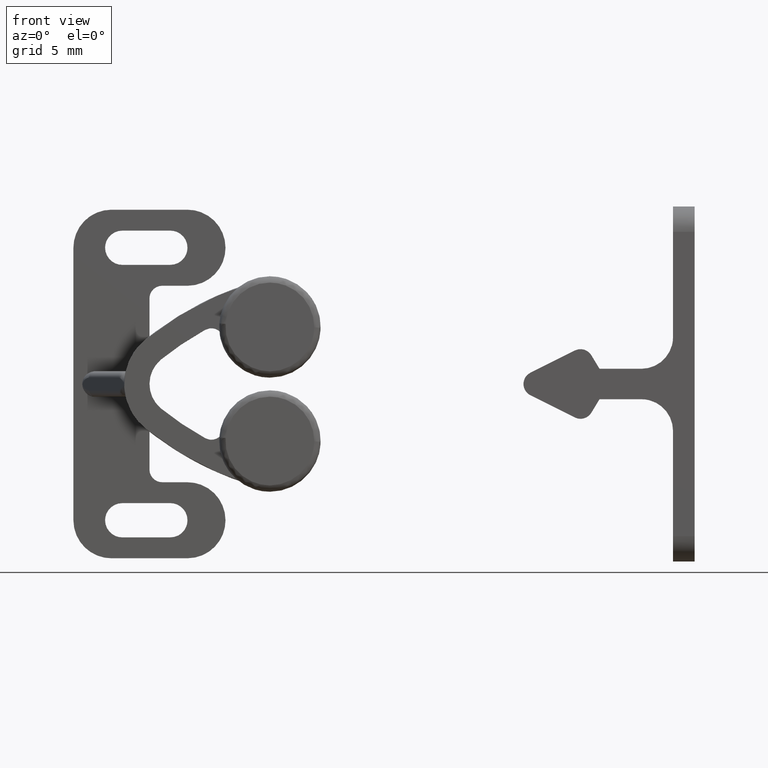
[diagram: clean part render]
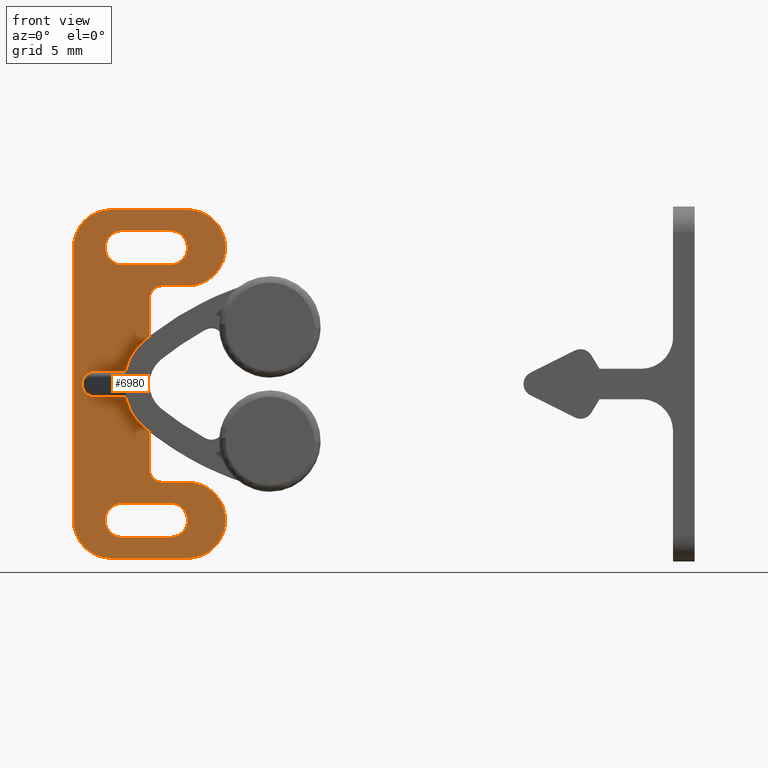
[diagram: same view with one face highlighted and labeled with its STEP entity id]
A machine part, front view. The second image highlights one B-rep face of the part: STEP entity #6980.
In plain terms, the highlighted face is a freeform B-spline surface patch.
Its self-contained STEP definition (entity closure, byte-faithful):
#3278=CARTESIAN_POINT('',(0.843505747733497,-2.299999999999970,-0.516156561359312));
#3279=VERTEX_POINT('',#3278);
#3324=CARTESIAN_POINT('',(0.700000000000102,-2.299999999999970,0.0));
#3325=VERTEX_POINT('',#3324);
#3337=CARTESIAN_POINT('',(0.700000000000102,-2.299999999999970,0.0));
#3338=CARTESIAN_POINT('',(0.700233809387608,-2.299999999999970,-0.179054375784687));
#3339=CARTESIAN_POINT('',(0.751085588481453,-2.299999999999970,-0.362797380615868));
#3340=CARTESIAN_POINT('',(0.843505747733497,-2.299999999999970,-0.516156561359312));
#3341=B_SPLINE_CURVE_WITH_KNOTS('',3,(#3337,#3338,#3339,#3340),.UNSPECIFIED.,.F.,.U.,(4,4),(0.0,0.537163585316673),.UNSPECIFIED.);
#3342=EDGE_CURVE('',#3325,#3279,#3341,.T.);
#3921=CARTESIAN_POINT('',(0.843505747733497,-2.299999999999970,0.516156561359312));
#3922=VERTEX_POINT('',#3921);
#3983=CARTESIAN_POINT('',(0.843505747733497,-2.299999999999970,0.516156561359312));
#3984=CARTESIAN_POINT('',(0.751085587222912,-2.299999999999970,0.362797378529946));
#3985=CARTESIAN_POINT('',(0.700233810786199,-2.299999999999970,0.179054378219047));
#3986=CARTESIAN_POINT('',(0.700000000000102,-2.299999999999970,0.0));
#3987=B_SPLINE_CURVE_WITH_KNOTS('',3,(#3983,#3984,#3985,#3986),.UNSPECIFIED.,.F.,.U.,(4,4),(0.0,0.537163592625224),.UNSPECIFIED.);
#3988=EDGE_CURVE('',#3922,#3325,#3987,.T.);
#4068=CARTESIAN_POINT('',(1.700000000000100,-2.299999999999970,-1.0));
#4069=VERTEX_POINT('',#4068);
#4076=CARTESIAN_POINT('',(0.843505747733497,-2.299999999999970,-0.516156561359312));
#4077=CARTESIAN_POINT('',(0.915255444277593,-2.299999999999973,-0.635546558131602));
#4078=CARTESIAN_POINT('',(1.087329779086633,-2.299999999999964,-0.819383991560892));
#4079=CARTESIAN_POINT('',(1.400049257126239,-2.299999999999977,-0.970352942287705));
#4080=CARTESIAN_POINT('',(1.603582285530137,-2.299999999999962,-1.000034661470277));
#4081=CARTESIAN_POINT('',(1.700000000000100,-2.299999999999970,-1.0));
#4082=B_SPLINE_CURVE_WITH_KNOTS('',3,(#4076,#4077,#4078,#4079,#4080,#4081),.UNSPECIFIED.,.F.,.U.,(4,1,1,4),(0.000000034371817,0.417815579134470,0.739197545418162,1.028449946974713),.UNSPECIFIED.);
#4083=EDGE_CURVE('',#3279,#4069,#4082,.T.);
#4096=CARTESIAN_POINT('',(4.113422412288705,-2.299999999999970,-1.0));
#4097=VERTEX_POINT('',#4096);
#4098=CARTESIAN_POINT('',(1.700000000000100,-2.299999999999970,-1.0));
#4099=CARTESIAN_POINT('',(4.113422412288705,-2.299999999999970,-1.0));
#4100=QUASI_UNIFORM_CURVE('',1,(#4098,#4099),.UNSPECIFIED.,.F.,.U.);
#4101=EDGE_CURVE('',#4069,#4097,#4100,.T.);
#4116=CARTESIAN_POINT('',(1.700000000000100,-2.299999999999970,1.0));
#4117=VERTEX_POINT('',#4116);
#4131=CARTESIAN_POINT('',(4.113365432923684,-2.299999999999970,1.0));
#4132=VERTEX_POINT('',#4131);
#4138=CARTESIAN_POINT('',(4.113365432923684,-2.299999999999970,1.0));
#4139=CARTESIAN_POINT('',(1.700000000000100,-2.299999999999970,1.0));
#4140=QUASI_UNIFORM_CURVE('',1,(#4138,#4139),.UNSPECIFIED.,.F.,.U.);
#4141=EDGE_CURVE('',#4132,#4117,#4140,.T.);
#4164=CARTESIAN_POINT('',(7.650000000000000,-2.299999999999970,9.400000000000000));
#4165=VERTEX_POINT('',#4164);
#4166=CARTESIAN_POINT('',(8.999999999999755,-2.299999999999970,10.750000811932880));
#4167=VERTEX_POINT('',#4166);
#4168=CARTESIAN_POINT('',(7.650000000000000,-2.299999999999970,9.400000000000000));
#4169=CARTESIAN_POINT('',(7.749402557328622,-2.299999999999971,9.399981047211963));
#4170=CARTESIAN_POINT('',(7.937154025100822,-2.299999999999973,9.420832805873065));
#4171=CARTESIAN_POINT('',(8.179526037836640,-2.299999999999965,9.500900153024407));
#4172=CARTESIAN_POINT('',(8.394400225738018,-2.299999999999976,9.615756803062842));
#4173=CARTESIAN_POINT('',(8.586874375025223,-2.299999999999969,9.765967720530572));
#4174=CARTESIAN_POINT('',(8.789904273960744,-2.299999999999970,10.001232468745290));
#4175=CARTESIAN_POINT('',(8.955519876815499,-2.299999999999975,10.330344360193431));
#4176=CARTESIAN_POINT('',(9.000083437213677,-2.299999999999968,10.606409975172429));
#4177=CARTESIAN_POINT('',(8.999999999999755,-2.299999999999970,10.750000811932880));
#4178=B_SPLINE_CURVE_WITH_KNOTS('',3,(#4168,#4169,#4170,#4171,#4172,#4173,#4174,#4175,#4176,#4177),.UNSPECIFIED.,.F.,.U.,(4,1,1,1,1,1,1,4),(0.000000025789444,0.298210378248797,0.563292643850602,0.762105278370097,1.027181729565759,1.292254794693749,1.689876566950777,2.120628712481768),.UNSPECIFIED.);
#4179=EDGE_CURVE('',#4165,#4167,#4178,.T.);
#4181=CARTESIAN_POINT('',(7.650000000000000,-2.299999999999970,12.100000000000000));
#4182=VERTEX_POINT('',#4181);
#4183=CARTESIAN_POINT('',(8.999999999999755,-2.299999999999970,10.750000811932880));
#4184=CARTESIAN_POINT('',(9.000015668192489,-2.299999999999973,10.849402499823290));
#4185=CARTESIAN_POINT('',(8.976732985731045,-2.299999999999964,11.059249840392591));
#4186=CARTESIAN_POINT('',(8.875518521627514,-2.299999999999974,11.342145033072580));
#4187=CARTESIAN_POINT('',(8.732995772587737,-2.299999999999973,11.567160576149110));
#4188=CARTESIAN_POINT('',(8.554514765865399,-2.299999999999965,11.764117573793669));
#4189=CARTESIAN_POINT('',(8.340003513751242,-2.299999999999985,11.923203426538389));
#4190=CARTESIAN_POINT('',(8.025469583679664,-2.299999999999951,12.062623476874240));
#4191=CARTESIAN_POINT('',(7.793593711509823,-2.299999999999990,12.100087794503210));
#4192=CARTESIAN_POINT('',(7.650000000000000,-2.299999999999970,12.100000000000000));
#4193=B_SPLINE_CURVE_WITH_KNOTS('',3,(#4183,#4184,#4185,#4186,#4187,#4188,#4189,#4190,#4191,#4192),.UNSPECIFIED.,.F.,.U.,(4,1,1,1,1,1,1,4),(0.000000026901171,0.298210250636993,0.629563241022495,0.894645337750800,1.093447037096576,1.424795401899806,1.689875837432176,2.120627797221327),.UNSPECIFIED.);
#4194=EDGE_CURVE('',#4167,#4182,#4193,.T.);
#4246=CARTESIAN_POINT('',(3.850000000000110,-2.299999999999970,12.100000000000000));
#4247=VERTEX_POINT('',#4246);
#4248=CARTESIAN_POINT('',(3.850000000000110,-2.299999999999970,12.100000000000000));
#4249=CARTESIAN_POINT('',(7.650000000000000,-2.299999999999970,12.100000000000000));
#4250=QUASI_UNIFORM_CURVE('',1,(#4248,#4249),.UNSPECIFIED.,.F.,.U.);
#4251=EDGE_CURVE('',#4247,#4182,#4250,.T.);
#4287=CARTESIAN_POINT('',(2.500000000000354,-2.299999999999970,10.749999188067120));
#4288=VERTEX_POINT('',#4287);
#4289=CARTESIAN_POINT('',(3.850000000000110,-2.299999999999970,12.100000000000000));
#4290=CARTESIAN_POINT('',(3.706405985926779,-2.299999999999973,12.100090510650221));
#4291=CARTESIAN_POINT('',(3.496614726034196,-2.299999999999969,12.066187649613960));
#4292=CARTESIAN_POINT('',(3.220359852748424,-2.299999999999973,11.951744376897770));
#4293=CARTESIAN_POINT('',(3.014079268293695,-2.299999999999969,11.821129826784301));
#4294=CARTESIAN_POINT('',(2.821178269154522,-2.299999999999973,11.637468778349479));
#4295=CARTESIAN_POINT('',(2.667811116809147,-2.299999999999969,11.419702994909290));
#4296=CARTESIAN_POINT('',(2.537366574707897,-2.299999999999968,11.125473768928931));
#4297=CARTESIAN_POINT('',(2.499921282419927,-2.299999999999977,10.893590748319300));
#4298=CARTESIAN_POINT('',(2.500000000000354,-2.299999999999970,10.749999188067120));
#4299=B_SPLINE_CURVE_WITH_KNOTS('',3,(#4289,#4290,#4291,#4292,#4293,#4294,#4295,#4296,#4297,#4298),.UNSPECIFIED.,.F.,.U.,(4,1,1,1,1,1,1,4),(0.000000025789394,0.430751360980786,0.629563512026943,0.894645723896168,1.159715366890895,1.424796017258385,1.689876566950880,2.120628712481759),.UNSPECIFIED.);
#4300=EDGE_CURVE('',#4247,#4288,#4299,.T.);
#4302=CARTESIAN_POINT('',(3.850000000000110,-2.299999999999970,9.400000000000000));
#4303=VERTEX_POINT('',#4302);
#4304=CARTESIAN_POINT('',(2.500000000000354,-2.299999999999970,10.749999188067120));
#4305=CARTESIAN_POINT('',(2.499985293534791,-2.299999999999970,10.650598154511570));
#4306=CARTESIAN_POINT('',(2.523265941193422,-2.299999999999971,10.440749505605380));
#4307=CARTESIAN_POINT('',(2.624483826564969,-2.299999999999973,10.157857220304590));
#4308=CARTESIAN_POINT('',(2.778872545980878,-2.299999999999967,9.914080471855238));
#4309=CARTESIAN_POINT('',(2.962532512955595,-2.299999999999972,9.721182255945465));
#4310=CARTESIAN_POINT('',(3.207504052592639,-2.299999999999959,9.548604111108579));
#4311=CARTESIAN_POINT('',(3.507619368840242,-2.299999999999982,9.428608333629512));
#4312=CARTESIAN_POINT('',(3.739553299396837,-2.299999999999955,9.399977007308513));
#4313=CARTESIAN_POINT('',(3.850000000000110,-2.299999999999970,9.400000000000000));
#4314=B_SPLINE_CURVE_WITH_KNOTS('',3,(#4304,#4305,#4306,#4307,#4308,#4309,#4310,#4311,#4312,#4313),.UNSPECIFIED.,.F.,.U.,(4,1,1,1,1,1,1,4),(0.000000026898975,0.298210250635118,0.629563241020980,0.894645337749526,1.159714865212086,1.424795401899059,1.789281619381126,2.120627797221344),.UNSPECIFIED.);
#4315=EDGE_CURVE('',#4288,#4303,#4314,.T.);
#4361=CARTESIAN_POINT('',(7.650000000000000,-2.299999999999970,9.400000000000000));
#4362=CARTESIAN_POINT('',(3.850000000000110,-2.299999999999970,9.400000000000000));
#4363=QUASI_UNIFORM_CURVE('',1,(#4361,#4362),.UNSPECIFIED.,.F.,.U.);
#4364=EDGE_CURVE('',#4165,#4303,#4363,.T.);
#4394=CARTESIAN_POINT('',(7.650000000000000,-2.299999999999970,-12.099900000000000));
#4395=VERTEX_POINT('',#4394);
#4396=CARTESIAN_POINT('',(8.999999999999757,-2.299999999999970,-10.749899188067120));
#4397=VERTEX_POINT('',#4396);
#4398=CARTESIAN_POINT('',(7.650000000000000,-2.299999999999970,-12.099900000000000));
#4399=CARTESIAN_POINT('',(7.749400941634494,-2.299999999999971,-12.099914213434049));
#4400=CARTESIAN_POINT('',(7.959250309192721,-2.299999999999971,-12.076634363851420));
#4401=CARTESIAN_POINT('',(8.242141688020476,-2.299999999999973,-11.975415523165180));
#4402=CARTESIAN_POINT('',(8.485919855879708,-2.299999999999964,-11.821027267992671));
#4403=CARTESIAN_POINT('',(8.678821535009600,-2.299999999999977,-11.637368693309860));
#4404=CARTESIAN_POINT('',(8.832189027659595,-2.299999999999969,-11.419603265656910));
#4405=CARTESIAN_POINT('',(8.962633860937359,-2.299999999999960,-11.125373528353540));
#4406=CARTESIAN_POINT('',(9.000078578275716,-2.299999999999985,-10.893490894910929));
#4407=CARTESIAN_POINT('',(8.999999999999757,-2.299999999999970,-10.749899188067120));
#4408=B_SPLINE_CURVE_WITH_KNOTS('',3,(#4398,#4399,#4400,#4401,#4402,#4403,#4404,#4405,#4406,#4407),.UNSPECIFIED.,.F.,.U.,(4,1,1,1,1,1,1,4),(0.000000025787187,0.298210378247129,0.629563512025644,0.894645723895190,1.159715366890200,1.424796017257938,1.689876566950674,2.120628712481771),.UNSPECIFIED.);
#4409=EDGE_CURVE('',#4395,#4397,#4408,.T.);
#4411=CARTESIAN_POINT('',(7.650000000000000,-2.299999999999970,-9.399899999999999));
#4412=VERTEX_POINT('',#4411);
#4413=CARTESIAN_POINT('',(8.999999999999757,-2.299999999999970,-10.749899188067120));
#4414=CARTESIAN_POINT('',(9.000139697503025,-2.299999999999967,-10.584204345148359));
#4415=CARTESIAN_POINT('',(8.952633512998263,-2.299999999999976,-10.330291294973071));
#4416=CARTESIAN_POINT('',(8.797897768856961,-2.299999999999963,-10.022994577506459));
#4417=CARTESIAN_POINT('',(8.620386711917806,-2.299999999999982,-9.795511655087930));
#4418=CARTESIAN_POINT('',(8.396740617893800,-2.299999999999965,-9.611966915860085));
#4419=CARTESIAN_POINT('',(8.069603180246316,-2.299999999999975,-9.447264873538078));
#4420=CARTESIAN_POINT('',(7.815693630511643,-2.299999999999967,-9.399770031025629));
#4421=CARTESIAN_POINT('',(7.650000000000000,-2.299999999999970,-9.399899999999999));
#4422=B_SPLINE_CURVE_WITH_KNOTS('',3,(#4413,#4414,#4415,#4416,#4417,#4418,#4419,#4420,#4421),.UNSPECIFIED.,.F.,.U.,(4,1,1,1,1,1,4),(0.000000026900143,0.497021708257174,0.762104949887368,1.027181285317283,1.358524769483216,1.623605729262660,2.120627797221339),.UNSPECIFIED.);
#4423=EDGE_CURVE('',#4397,#4412,#4422,.T.);
#4474=CARTESIAN_POINT('',(3.850000000000110,-2.299999999999970,-9.399899999999999));
#4475=VERTEX_POINT('',#4474);
#4476=CARTESIAN_POINT('',(3.850000000000110,-2.299999999999970,-9.399899999999999));
#4477=CARTESIAN_POINT('',(7.650000000000000,-2.299999999999970,-9.399899999999999));
#4478=QUASI_UNIFORM_CURVE('',1,(#4476,#4477),.UNSPECIFIED.,.F.,.U.);
#4479=EDGE_CURVE('',#4475,#4412,#4478,.T.);
#4515=CARTESIAN_POINT('',(2.500000000000354,-2.299999999999970,-10.749900811932880));
#4516=VERTEX_POINT('',#4515);
#4517=CARTESIAN_POINT('',(3.850000000000110,-2.299999999999970,-9.399899999999999));
#4518=CARTESIAN_POINT('',(3.750599080149049,-2.299999999999969,-9.399885357185127));
#4519=CARTESIAN_POINT('',(3.540750018041040,-2.299999999999974,-9.423166072932009));
#4520=CARTESIAN_POINT('',(3.257858195888521,-2.299999999999972,-9.524384331966330));
#4521=CARTESIAN_POINT('',(3.014080177910426,-2.299999999999963,-9.678772774366534));
#4522=CARTESIAN_POINT('',(2.821178290615300,-2.299999999999975,-9.862431157788791));
#4523=CARTESIAN_POINT('',(2.667811207548098,-2.299999999999971,-10.080197156893041));
#4524=CARTESIAN_POINT('',(2.537366431593652,-2.299999999999965,-10.374426054832250));
#4525=CARTESIAN_POINT('',(2.499921235903229,-2.299999999999979,-10.606309502673261));
#4526=CARTESIAN_POINT('',(2.500000000000354,-2.299999999999970,-10.749900811932880));
#4527=B_SPLINE_CURVE_WITH_KNOTS('',3,(#4517,#4518,#4519,#4520,#4521,#4522,#4523,#4524,#4525,#4526),.UNSPECIFIED.,.F.,.U.,(4,1,1,1,1,1,1,4),(0.000000025789730,0.298210378249141,0.629563512027065,0.894645723896220,1.159715366890918,1.424796017258402,1.689876566950886,2.120628712481759),.UNSPECIFIED.);
#4528=EDGE_CURVE('',#4475,#4516,#4527,.T.);
#4530=CARTESIAN_POINT('',(3.850000000000110,-2.299999999999970,-12.099900000000000));
#4531=VERTEX_POINT('',#4530);
#4532=CARTESIAN_POINT('',(2.500000000000354,-2.299999999999970,-10.749900811932880));
#4533=CARTESIAN_POINT('',(2.499984108902638,-2.299999999999970,-10.849302445875161));
#4534=CARTESIAN_POINT('',(2.523267055770418,-2.299999999999971,-11.059150753909350));
#4535=CARTESIAN_POINT('',(2.624483055137834,-2.299999999999967,-11.342042519131301));
#4536=CARTESIAN_POINT('',(2.778872648409469,-2.299999999999976,-11.585820313173789));
#4537=CARTESIAN_POINT('',(2.962530290874001,-2.299999999999961,-11.778722132952019));
#4538=CARTESIAN_POINT('',(3.180296745906498,-2.299999999999984,-11.932089499771880));
#4539=CARTESIAN_POINT('',(3.474525102540138,-2.299999999999962,-12.062532906585620));
#4540=CARTESIAN_POINT('',(3.706408935132588,-2.299999999999968,-12.099979147744509));
#4541=CARTESIAN_POINT('',(3.850000000000110,-2.299999999999970,-12.099900000000000));
#4542=B_SPLINE_CURVE_WITH_KNOTS('',3,(#4532,#4533,#4534,#4535,#4536,#4537,#4538,#4539,#4540,#4541),.UNSPECIFIED.,.F.,.U.,(4,1,1,1,1,1,1,4),(0.000000026901870,0.298210250637612,0.629563241022979,0.894645337751154,1.159714865213347,1.424795401899937,1.689875837432240,2.120627797221328),.UNSPECIFIED.);
#4543=EDGE_CURVE('',#4516,#4531,#4542,.T.);
#4589=CARTESIAN_POINT('',(7.650000000000000,-2.299999999999970,-12.099900000000000));
#4590=CARTESIAN_POINT('',(3.850000000000110,-2.299999999999970,-12.099900000000000));
#4591=QUASI_UNIFORM_CURVE('',1,(#4589,#4590),.UNSPECIFIED.,.F.,.U.);
#4592=EDGE_CURVE('',#4395,#4531,#4591,.T.);
#4657=CARTESIAN_POINT('',(9.000000000000100,-2.299999999999970,13.750000000000000));
#4658=VERTEX_POINT('',#4657);
#4664=CARTESIAN_POINT('',(12.000000000000050,-2.299999999999971,10.750000543070691));
#4665=VERTEX_POINT('',#4664);
#4666=CARTESIAN_POINT('',(12.000000000000050,-2.299999999999971,10.750000543070691));
#4667=CARTESIAN_POINT('',(12.000053593676590,-2.299999999999972,10.983169772181659));
#4668=CARTESIAN_POINT('',(11.953974663108751,-2.299999999999968,11.375843893732680));
#4669=CARTESIAN_POINT('',(11.772055156794551,-2.299999999999971,11.938073267769710));
#4670=CARTESIAN_POINT('',(11.493078590751750,-2.299999999999971,12.460095389281340));
#4671=CARTESIAN_POINT('',(11.084429085948480,-2.299999999999966,12.939751226296339));
#4672=CARTESIAN_POINT('',(10.632980788881479,-2.299999999999970,13.283180282079909));
#4673=CARTESIAN_POINT('',(10.132369064992490,-2.299999999999960,13.546864685548661));
#4674=CARTESIAN_POINT('',(9.601325081251266,-2.299999999999988,13.711509758050861));
#4675=CARTESIAN_POINT('',(9.184074671938713,-2.299999999999955,13.750011866377720));
#4676=CARTESIAN_POINT('',(9.000000000000100,-2.299999999999970,13.750000000000000));
#4677=B_SPLINE_CURVE_WITH_KNOTS('',3,(#4666,#4667,#4668,#4669,#4670,#4671,#4672,#4673,#4674,#4675,#4676),.UNSPECIFIED.,.F.,.U.,(4,1,1,1,1,1,1,1,4),(0.000000048695574,0.699498003101743,1.178104725971650,1.767160780410834,2.466642790126474,3.055706859851914,3.460681937786628,4.160186801975105,4.712418242542081),.UNSPECIFIED.);
#4678=EDGE_CURVE('',#4665,#4658,#4677,.T.);
#4680=CARTESIAN_POINT('',(9.000000000000100,-2.299999999999970,7.750000000000000));
#4681=VERTEX_POINT('',#4680);
#4682=CARTESIAN_POINT('',(9.000000000000100,-2.299999999999970,7.750000000000000));
#4683=CARTESIAN_POINT('',(9.294535634386532,-2.299999999999971,7.749871884940689));
#4684=CARTESIAN_POINT('',(9.797609576847741,-2.299999999999972,7.824710212008350));
#4685=CARTESIAN_POINT('',(10.388852439509330,-2.299999999999969,8.073915210544719));
#4686=CARTESIAN_POINT('',(10.813230049362000,-2.299999999999971,8.346336695205981));
#4687=CARTESIAN_POINT('',(11.202693444303099,-2.299999999999964,8.686437053213496));
#4688=CARTESIAN_POINT('',(11.605366097331720,-2.299999999999978,9.202276264855374));
#4689=CARTESIAN_POINT('',(11.921499367347961,-2.299999999999964,9.915558235926511));
#4690=CARTESIAN_POINT('',(12.000097483015040,-2.299999999999974,10.467738906270780));
#4691=CARTESIAN_POINT('',(12.000000000000050,-2.299999999999971,10.750000543070691));
#4692=B_SPLINE_CURVE_WITH_KNOTS('',3,(#4682,#4683,#4684,#4685,#4686,#4687,#4688,#4689,#4690,#4691),.UNSPECIFIED.,.F.,.U.,(4,1,1,1,1,1,1,4),(0.000000048506575,0.883573538810838,1.509447357172758,1.914422498583883,2.393010773957694,3.055707257154940,3.865656931609996,4.712418854713158),.UNSPECIFIED.);
#4693=EDGE_CURVE('',#4681,#4665,#4692,.T.);
#4716=CARTESIAN_POINT('',(7.0,-2.299999999999970,7.750000000000000));
#4717=VERTEX_POINT('',#4716);
#4718=CARTESIAN_POINT('',(7.0,-2.299999999999970,7.750000000000000));
#4719=CARTESIAN_POINT('',(9.000000000000100,-2.299999999999970,7.750000000000000));
#4720=QUASI_UNIFORM_CURVE('',1,(#4718,#4719),.UNSPECIFIED.,.F.,.U.);
#4721=EDGE_CURVE('',#4717,#4681,#4720,.T.);
#4759=CARTESIAN_POINT('',(6.0,-2.299999999999970,6.750000000000000));
#4760=VERTEX_POINT('',#4759);
#4761=CARTESIAN_POINT('',(7.0,-2.299999999999970,7.750000000000000));
#4762=CARTESIAN_POINT('',(6.910012894858784,-2.299999999999974,7.750012746437406));
#4763=CARTESIAN_POINT('',(6.705460465298390,-2.299999999999967,7.722264511860942));
#4764=CARTESIAN_POINT('',(6.457802216845225,-2.299999999999974,7.605136307776079));
#4765=CARTESIAN_POINT('',(6.271091725332661,-2.299999999999969,7.443982220678989));
#4766=CARTESIAN_POINT('',(6.149704103771324,-2.299999999999974,7.288450567877830));
#4767=CARTESIAN_POINT('',(6.035098778933502,-2.299999999999967,7.060821859599308));
#4768=CARTESIAN_POINT('',(5.999883242059782,-2.299999999999958,6.872737800809436));
#4769=CARTESIAN_POINT('',(6.0,-2.299999999999970,6.750000000000000));
#4770=B_SPLINE_CURVE_WITH_KNOTS('',3,(#4761,#4762,#4763,#4764,#4765,#4766,#4767,#4768,#4769),.UNSPECIFIED.,.F.,.U.,(4,1,1,1,1,1,4),(0.000000069874289,0.269981652643560,0.613609156401743,0.809953124877512,1.006308082065052,1.202672496496640,1.570835744338025),.UNSPECIFIED.);
#4771=EDGE_CURVE('',#4717,#4760,#4770,.T.);
#4811=CARTESIAN_POINT('',(6.0,-2.299999999999970,-6.749899999999999));
#4812=VERTEX_POINT('',#4811);
#4818=CARTESIAN_POINT('',(7.0,-2.299999999999970,-7.749899999999999));
#4819=VERTEX_POINT('',#4818);
#4820=CARTESIAN_POINT('',(6.0,-2.299999999999970,-6.749899999999999));
#4821=CARTESIAN_POINT('',(5.999974318967323,-2.299999999999975,-6.839893383332561));
#4822=CARTESIAN_POINT('',(6.023344860156441,-2.299999999999967,-7.011689346353127));
#4823=CARTESIAN_POINT('',(6.108522658755790,-2.299999999999967,-7.217306092338613));
#4824=CARTESIAN_POINT('',(6.227019743482052,-2.299999999999977,-7.394655010190077));
#4825=CARTESIAN_POINT('',(6.390210103176875,-2.299999999999964,-7.557869463137843));
#4826=CARTESIAN_POINT('',(6.656436987367544,-2.299999999999981,-7.708726737497448));
#4827=CARTESIAN_POINT('',(6.877272529862829,-2.299999999999961,-7.749998890183670));
#4828=CARTESIAN_POINT('',(7.0,-2.299999999999970,-7.749899999999999));
#4829=B_SPLINE_CURVE_WITH_KNOTS('',3,(#4820,#4821,#4822,#4823,#4824,#4825,#4826,#4827,#4828),.UNSPECIFIED.,.F.,.U.,(4,1,1,1,1,1,4),(0.000000069874578,0.269981652643827,0.515436324337126,0.662707837363206,0.908127976849567,1.202672496496796,1.570835744338011),.UNSPECIFIED.);
#4830=EDGE_CURVE('',#4812,#4819,#4829,.T.);
#4853=CARTESIAN_POINT('',(9.000000000000100,-2.299999999999970,-7.749899999999999));
#4854=VERTEX_POINT('',#4853);
#4855=CARTESIAN_POINT('',(9.000000000000100,-2.299999999999970,-7.749899999999999));
#4856=CARTESIAN_POINT('',(7.0,-2.299999999999970,-7.749899999999999));
#4857=QUASI_UNIFORM_CURVE('',1,(#4855,#4856),.UNSPECIFIED.,.F.,.U.);
#4858=EDGE_CURVE('',#4854,#4819,#4857,.T.);
#4919=CARTESIAN_POINT('',(12.000000000000050,-2.299999999999970,-10.749899456929310));
#4920=VERTEX_POINT('',#4919);
#4921=CARTESIAN_POINT('',(12.000000000000050,-2.299999999999970,-10.749899456929310));
#4922=CARTESIAN_POINT('',(12.000052467291409,-2.299999999999973,-10.516729798344340));
#4923=CARTESIAN_POINT('',(11.949667005289021,-2.299999999999966,-10.087239988176680));
#4924=CARTESIAN_POINT('',(11.757111995627060,-2.299999999999970,-9.527543974652273));
#4925=CARTESIAN_POINT('',(11.469032872722600,-2.299999999999968,-9.011585667359503));
#4926=CARTESIAN_POINT('',(11.084422404405901,-2.299999999999970,-8.560161938851859));
#4927=CARTESIAN_POINT('',(10.574111459345239,-2.299999999999971,-8.171890862305920));
#4928=CARTESIAN_POINT('',(10.084751766701331,-2.299999999999971,-7.936774633388061));
#4929=CARTESIAN_POINT('',(9.552215884736123,-2.299999999999967,-7.785898859571229));
#4930=CARTESIAN_POINT('',(9.208621382709881,-2.299999999999967,-7.749864498576166));
#4931=CARTESIAN_POINT('',(9.000000000000100,-2.299999999999970,-7.749899999999999));
#4932=B_SPLINE_CURVE_WITH_KNOTS('',3,(#4921,#4922,#4923,#4924,#4925,#4926,#4927,#4928,#4929,#4930,#4931),.UNSPECIFIED.,.F.,.U.,(4,1,1,1,1,1,1,1,4),(0.000000048688013,0.699498003095083,1.288553821416623,1.767160780405749,2.466642790122211,3.055706859848579,3.681579393512612,4.086559780579433,4.712418242542121),.UNSPECIFIED.);
#4933=EDGE_CURVE('',#4920,#4854,#4932,.T.);
#4935=CARTESIAN_POINT('',(9.000000000000100,-2.299999999999970,-13.749900000000000));
#4936=VERTEX_POINT('',#4935);
#4937=CARTESIAN_POINT('',(9.000000000000100,-2.299999999999970,-13.749900000000000));
#4938=CARTESIAN_POINT('',(9.159529914950904,-2.299999999999966,-13.749908350914239));
#4939=CARTESIAN_POINT('',(9.503136703637281,-2.299999999999981,-13.722428846867381));
#4940=CARTESIAN_POINT('',(10.076093106166180,-2.299999999999951,-13.575244274209640));
#4941=CARTESIAN_POINT('',(10.628296238383371,-2.299999999999989,-13.297259403091280));
#4942=CARTESIAN_POINT('',(11.154899365586420,-2.299999999999952,-12.870468897249321));
#4943=CARTESIAN_POINT('',(11.541196197358721,-2.299999999999975,-12.387813376818681));
#4944=CARTESIAN_POINT('',(11.814836991401840,-2.299999999999970,-11.835699067717769));
#4945=CARTESIAN_POINT('',(11.966009409956870,-2.299999999999974,-11.302124216283330));
#4946=CARTESIAN_POINT('',(12.000018871287979,-2.299999999999961,-10.933976839748629));
#4947=CARTESIAN_POINT('',(12.000000000000050,-2.299999999999970,-10.749899456929310));
#4948=B_SPLINE_CURVE_WITH_KNOTS('',3,(#4937,#4938,#4939,#4940,#4941,#4942,#4943,#4944,#4945,#4946,#4947),.UNSPECIFIED.,.F.,.U.,(4,1,1,1,1,1,1,1,4),(0.000000048507029,0.478592987480356,1.030839089625757,1.767161009621287,2.319407943406903,3.055707257155633,3.607945917459536,4.160187342640295,4.712418854713161),.UNSPECIFIED.);
#4949=EDGE_CURVE('',#4936,#4920,#4948,.T.);
#4972=CARTESIAN_POINT('',(3.0,-2.299999999999970,-13.749900000000000));
#4973=VERTEX_POINT('',#4972);
#4974=CARTESIAN_POINT('',(3.0,-2.299999999999970,-13.749900000000000));
#4975=CARTESIAN_POINT('',(9.000000000000100,-2.299999999999970,-13.749900000000000));
#4976=QUASI_UNIFORM_CURVE('',1,(#4974,#4975),.UNSPECIFIED.,.F.,.U.);
#4977=EDGE_CURVE('',#4973,#4936,#4976,.T.);
#5018=CARTESIAN_POINT('',(0.0,-2.299999999999970,-10.749900000000000));
#5019=VERTEX_POINT('',#5018);
#5020=CARTESIAN_POINT('',(0.0,-2.299999999999970,-10.749900000000000));
#5021=CARTESIAN_POINT('',(-0.000077205900153,-2.299999999999972,-11.007613974464080));
#5022=CARTESIAN_POINT('',(0.065231774432269,-2.299999999999969,-11.510722637496380));
#5023=CARTESIAN_POINT('',(0.331485795750029,-2.299999999999964,-12.176613632508539));
#5024=CARTESIAN_POINT('',(0.655503570493417,-2.299999999999978,-12.642624882469541));
#5025=CARTESIAN_POINT('',(0.979632813076495,-2.299999999999958,-12.978877298903599));
#5026=CARTESIAN_POINT('',(1.383089199240645,-2.299999999999975,-13.301876176990850));
#5027=CARTESIAN_POINT('',(1.900944605180449,-2.299999999999959,-13.566552352262750));
#5028=CARTESIAN_POINT('',(2.484595211160613,-2.299999999999971,-13.720296299163570));
#5029=CARTESIAN_POINT('',(2.828197337970949,-2.299999999999972,-13.749913557265581));
#5030=CARTESIAN_POINT('',(3.0,-2.299999999999970,-13.749900000000000));
#5031=B_SPLINE_CURVE_WITH_KNOTS('',3,(#5020,#5021,#5022,#5023,#5024,#5025,#5026,#5027,#5028,#5029,#5030),.UNSPECIFIED.,.F.,.U.,(4,1,1,1,1,1,1,1,4),(0.000000048599083,0.773124328662280,1.509447259136979,2.135331118252338,2.466642950562388,2.908440773372250,3.681579632680768,4.197009001370368,4.712418548627666),.UNSPECIFIED.);
#5032=EDGE_CURVE('',#5019,#4973,#5031,.T.);
#5055=CARTESIAN_POINT('',(0.0,-2.299999999999970,10.750000000000000));
#5056=VERTEX_POINT('',#5055);
#5057=CARTESIAN_POINT('',(0.0,-2.299999999999970,10.750000000000000));
#5058=CARTESIAN_POINT('',(0.0,-2.299999999999970,-10.749900000000000));
#5059=QUASI_UNIFORM_CURVE('',1,(#5057,#5058),.UNSPECIFIED.,.F.,.U.);
#5060=EDGE_CURVE('',#5056,#5019,#5059,.T.);
#5101=CARTESIAN_POINT('',(3.0,-2.299999999999970,13.750000000000000));
#5102=VERTEX_POINT('',#5101);
#5103=CARTESIAN_POINT('',(3.0,-2.299999999999970,13.750000000000000));
#5104=CARTESIAN_POINT('',(2.680901671736421,-2.299999999999968,13.750187042172580));
#5105=CARTESIAN_POINT('',(2.251504306527658,-2.299999999999972,13.680829621484630));
#5106=CARTESIAN_POINT('',(1.702407185537509,-2.299999999999967,13.465075957810811));
#5107=CARTESIAN_POINT('',(1.326195493578856,-2.299999999999979,13.255014569107839));
#5108=CARTESIAN_POINT('',(0.968839412968176,-2.299999999999958,12.972562399876541));
#5109=CARTESIAN_POINT('',(0.598034363813504,-2.299999999999967,12.578354727148650));
#5110=CARTESIAN_POINT('',(0.280511953612419,-2.299999999999985,12.076953707286830));
#5111=CARTESIAN_POINT('',(0.051766567715221,-2.299999999999972,11.424930028885610));
#5112=CARTESIAN_POINT('',(-0.000043871308898,-2.299999999999968,10.983168305606050));
#5113=CARTESIAN_POINT('',(0.0,-2.299999999999970,10.750000000000000));
#5114=B_SPLINE_CURVE_WITH_KNOTS('',3,(#5103,#5104,#5105,#5106,#5107,#5108,#5109,#5110,#5111,#5112,#5113),.UNSPECIFIED.,.F.,.U.,(4,1,1,1,1,1,1,1,4),(0.000000048601199,0.957209272491482,1.288553905037728,1.767160895015686,2.245775818911043,2.650733836835076,3.387048212998030,4.012920787176886,4.712418548627663),.UNSPECIFIED.);
#5115=EDGE_CURVE('',#5102,#5056,#5114,.T.);
#5136=CARTESIAN_POINT('',(9.000000000000100,-2.299999999999970,13.750000000000000));
#5137=CARTESIAN_POINT('',(3.0,-2.299999999999970,13.750000000000000));
#5138=QUASI_UNIFORM_CURVE('',1,(#5136,#5137),.UNSPECIFIED.,.F.,.U.);
#5139=EDGE_CURVE('',#4658,#5102,#5138,.T.);
#5679=CARTESIAN_POINT('',(6.0,-2.299999999999970,3.761734387904555));
#5680=VERTEX_POINT('',#5679);
#5689=CARTESIAN_POINT('',(6.0,-2.299999999999970,-3.761487593637200));
#5690=VERTEX_POINT('',#5689);
#5696=CARTESIAN_POINT('',(6.0,-2.299999999999970,-6.749899999999999));
#5697=CARTESIAN_POINT('',(6.0,-2.299999999999970,-3.761487593637200));
#5698=QUASI_UNIFORM_CURVE('',1,(#5696,#5697),.UNSPECIFIED.,.F.,.U.);
#5699=EDGE_CURVE('',#4812,#5690,#5698,.T.);
#5708=CARTESIAN_POINT('',(6.0,-2.299999999999970,3.761734387904555));
#5709=CARTESIAN_POINT('',(6.0,-2.299999999999970,6.750000000000000));
#5710=QUASI_UNIFORM_CURVE('',1,(#5708,#5709),.UNSPECIFIED.,.F.,.U.);
#5711=EDGE_CURVE('',#5680,#4760,#5710,.T.);
#5884=CARTESIAN_POINT('',(5.661708565968510,-2.299999999999970,-3.491210335339310));
#5885=VERTEX_POINT('',#5884);
#5891=CARTESIAN_POINT('',(5.661708565968510,-2.299999999999970,-3.491210335339310));
#5892=CARTESIAN_POINT('',(5.773689133477379,-2.299999999999970,-3.582276439671369));
#5893=CARTESIAN_POINT('',(5.886459332840506,-2.299999999999971,-3.672373961672721));
#5894=CARTESIAN_POINT('',(6.0,-2.299999999999970,-3.761487593637200));
#5895=B_SPLINE_CURVE_WITH_KNOTS('',3,(#5891,#5892,#5893,#5894),.UNSPECIFIED.,.F.,.U.,(4,4),(1.584233E-012,0.433007930689227),.UNSPECIFIED.);
#5896=EDGE_CURVE('',#5885,#5690,#5895,.T.);
#6678=CARTESIAN_POINT('',(5.661802328660530,-2.299999999999970,3.491536585365850));
#6679=VERTEX_POINT('',#6678);
#6680=CARTESIAN_POINT('',(6.0,-2.299999999999970,3.761734387904555));
#6681=CARTESIAN_POINT('',(5.886490921416363,-2.299999999999971,3.672647057282388));
#6682=CARTESIAN_POINT('',(5.773751979139391,-2.299999999999969,3.582576020648805));
#6683=CARTESIAN_POINT('',(5.661802328660530,-2.299999999999970,3.491536585365850));
#6684=B_SPLINE_CURVE_WITH_KNOTS('',3,(#6680,#6681,#6682,#6683),.UNSPECIFIED.,.F.,.U.,(4,4),(1.582734E-012,0.432885079357503),.UNSPECIFIED.);
#6685=EDGE_CURVE('',#5680,#6679,#6684,.T.);
#6897=CARTESIAN_POINT('',(4.113422412288705,-2.299999999999970,-1.0));
#6898=CARTESIAN_POINT('',(4.182545502619115,-2.299999999999963,-1.303451773051651));
#6899=CARTESIAN_POINT('',(4.328710344830197,-2.299999999999982,-1.732957673895461));
#6900=CARTESIAN_POINT('',(4.665685500052306,-2.299999999999960,-2.382975625033239));
#6901=CARTESIAN_POINT('',(5.064304467974946,-2.299999999999979,-2.943322155242184));
#6902=CARTESIAN_POINT('',(5.456457055749463,-2.299999999999966,-3.324320937246533));
#6903=CARTESIAN_POINT('',(5.661708565968510,-2.299999999999970,-3.491210335339310));
#6904=B_SPLINE_CURVE_WITH_KNOTS('',3,(#6897,#6898,#6899,#6900,#6901,#6902,#6903),.UNSPECIFIED.,.F.,.U.,(4,1,1,1,4),(7.915755E-009,0.933664693420604,1.353819169203420,2.194111552668763,2.987726817074574),.UNSPECIFIED.);
#6905=EDGE_CURVE('',#4097,#5885,#6904,.T.);
#6911=CARTESIAN_POINT('',(5.661802328660530,-2.299999999999970,3.491536585365850));
#6912=CARTESIAN_POINT('',(5.480674585185226,-2.299999999999973,3.344263673824052));
#6913=CARTESIAN_POINT('',(5.130110485810956,-2.299999999999967,3.010677639903869));
#6914=CARTESIAN_POINT('',(4.667322263813484,-2.299999999999973,2.401263050895424));
#6915=CARTESIAN_POINT('',(4.318382849506140,-2.299999999999970,1.719450183457576));
#6916=CARTESIAN_POINT('',(4.165223512286304,-2.299999999999966,1.227611819136656));
#6917=CARTESIAN_POINT('',(4.113365432923684,-2.299999999999970,1.0));
#6918=B_SPLINE_CURVE_WITH_KNOTS('',3,(#6911,#6912,#6913,#6914,#6915,#6916,#6917),.UNSPECIFIED.,.F.,.U.,(4,1,1,1,4),(7.920497E-009,0.700336570597762,1.447369211606627,2.287767524290939,2.988104086968221),.UNSPECIFIED.);
#6919=EDGE_CURVE('',#6679,#4132,#6918,.T.);
#6924=CARTESIAN_POINT('',(-0.599399976741672,-2.299999999999925,-15.123519951699860));
#6925=CARTESIAN_POINT('',(12.599400298606810,-2.299999999999925,-15.123519951699860));
#6926=CARTESIAN_POINT('',(-0.599399976741672,-2.299999999999925,15.123620689304660));
#6927=CARTESIAN_POINT('',(12.599400298606810,-2.299999999999925,15.123620689304660));
#6928=B_SPLINE_SURFACE_WITH_KNOTS('',1,1,((#6924,#6926),(#6925,#6927)),.UNSPECIFIED.,.F.,.F.,.U.,(2,2),(2,2),(0.0,13.198800275348480),(0.0,30.247140641004520),.UNSPECIFIED.);
#6929=ORIENTED_EDGE('',*,*,#5060,.T.);
#6930=ORIENTED_EDGE('',*,*,#5032,.T.);
#6931=ORIENTED_EDGE('',*,*,#4977,.T.);
#6932=ORIENTED_EDGE('',*,*,#4949,.T.);
#6933=ORIENTED_EDGE('',*,*,#4933,.T.);
#6934=ORIENTED_EDGE('',*,*,#4858,.T.);
#6935=ORIENTED_EDGE('',*,*,#4830,.F.);
#6936=ORIENTED_EDGE('',*,*,#5699,.T.);
#6937=ORIENTED_EDGE('',*,*,#5896,.F.);
#6938=ORIENTED_EDGE('',*,*,#6905,.F.);
#6939=ORIENTED_EDGE('',*,*,#4101,.F.);
#6940=ORIENTED_EDGE('',*,*,#4083,.F.);
#6941=ORIENTED_EDGE('',*,*,#3342,.F.);
#6942=ORIENTED_EDGE('',*,*,#3988,.F.);
#6943=CARTESIAN_POINT('',(1.700000000000100,-2.299999999999970,1.0));
#6944=CARTESIAN_POINT('',(1.598222336109641,-2.299999999999968,1.000045310942975));
#6945=CARTESIAN_POINT('',(1.394706415615160,-2.299999999999974,0.968662088934973));
#6946=CARTESIAN_POINT('',(1.083591199354218,-2.299999999999968,0.815372474384641));
#6947=CARTESIAN_POINT('',(0.915255172433714,-2.299999999999975,0.635551150594299));
#6948=CARTESIAN_POINT('',(0.843505747733497,-2.299999999999970,0.516156561359312));
#6949=B_SPLINE_CURVE_WITH_KNOTS('',3,(#6943,#6944,#6945,#6946,#6947,#6948),.UNSPECIFIED.,.F.,.U.,(4,1,1,4),(0.000000034371773,0.305323133097387,0.610634402212025,1.028449946974713),.UNSPECIFIED.);
#6950=EDGE_CURVE('',#4117,#3922,#6949,.T.);
#6951=ORIENTED_EDGE('',*,*,#6950,.F.);
#6952=ORIENTED_EDGE('',*,*,#4141,.F.);
#6953=ORIENTED_EDGE('',*,*,#6919,.F.);
#6954=ORIENTED_EDGE('',*,*,#6685,.F.);
#6955=ORIENTED_EDGE('',*,*,#5711,.T.);
#6956=ORIENTED_EDGE('',*,*,#4771,.F.);
#6957=ORIENTED_EDGE('',*,*,#4721,.T.);
#6958=ORIENTED_EDGE('',*,*,#4693,.T.);
#6959=ORIENTED_EDGE('',*,*,#4678,.T.);
#6960=ORIENTED_EDGE('',*,*,#5139,.T.);
#6961=ORIENTED_EDGE('',*,*,#5115,.T.);
#6962=EDGE_LOOP('',(#6929,#6930,#6931,#6932,#6933,#6934,#6935,#6936,#6937,#6938,#6939,#6940,#6941,#6942,#6951,#6952,#6953,#6954,#6955,#6956,#6957,#6958,#6959,#6960,#6961));
#6963=FACE_OUTER_BOUND('',#6962,.T.);
#6964=ORIENTED_EDGE('',*,*,#4364,.T.);
#6965=ORIENTED_EDGE('',*,*,#4315,.F.);
#6966=ORIENTED_EDGE('',*,*,#4300,.F.);
#6967=ORIENTED_EDGE('',*,*,#4251,.T.);
#6968=ORIENTED_EDGE('',*,*,#4194,.F.);
#6969=ORIENTED_EDGE('',*,*,#4179,.F.);
#6970=EDGE_LOOP('',(#6964,#6965,#6966,#6967,#6968,#6969));
#6971=FACE_BOUND('',#6970,.T.);
#6972=ORIENTED_EDGE('',*,*,#4592,.T.);
#6973=ORIENTED_EDGE('',*,*,#4543,.F.);
#6974=ORIENTED_EDGE('',*,*,#4528,.F.);
#6975=ORIENTED_EDGE('',*,*,#4479,.T.);
#6976=ORIENTED_EDGE('',*,*,#4423,.F.);
#6977=ORIENTED_EDGE('',*,*,#4409,.F.);
#6978=EDGE_LOOP('',(#6972,#6973,#6974,#6975,#6976,#6977));
#6979=FACE_BOUND('',#6978,.T.);
#6980=ADVANCED_FACE('',(#6963,#6971,#6979),#6928,.T.);